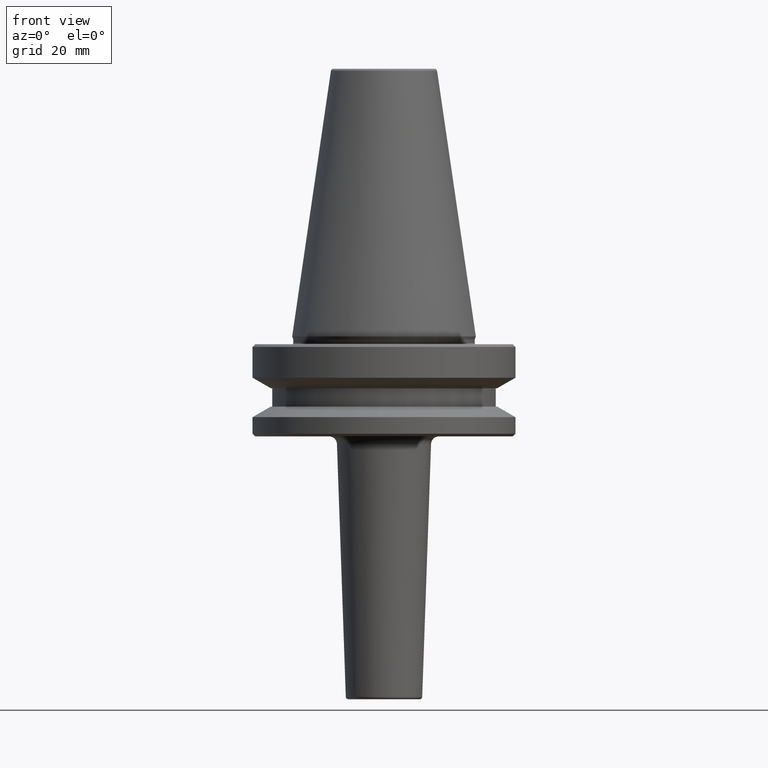
[diagram: clean part render]
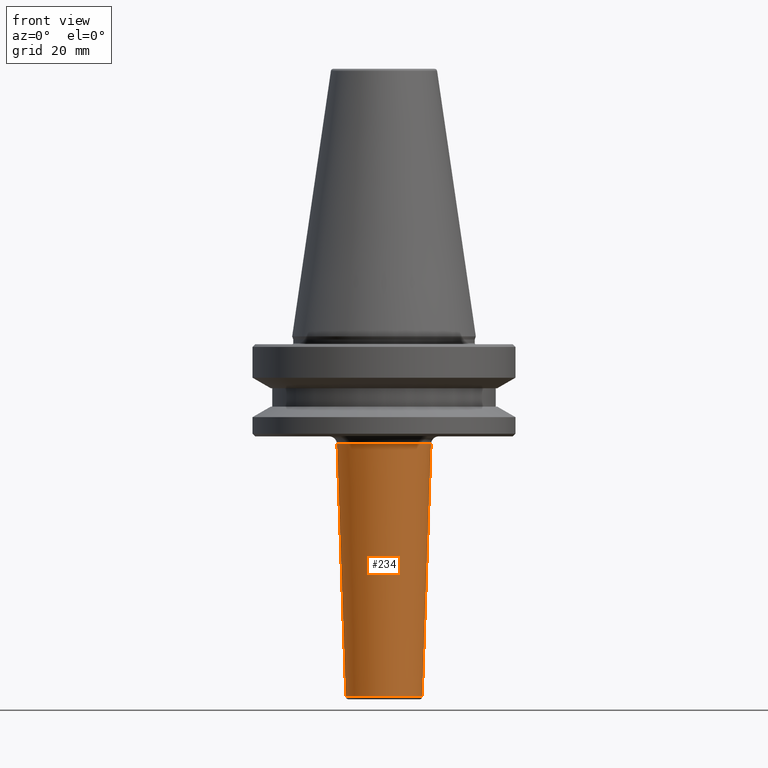
[diagram: same view with one face highlighted and labeled with its STEP entity id]
A machine part, front view. The second image highlights one B-rep face of the part: STEP entity #234.
In plain terms, the highlighted conical surface has half-angle 2.005 deg.
Its self-contained STEP definition (entity closure, byte-faithful):
#32 = VERTEX_POINT ( 'NONE', #838 ) ;
#78 = LINE ( 'NONE', #670, #550 ) ;
#88 = DIRECTION ( 'NONE',  ( 0.03497858217561827800, 0.0000000000000000000, 0.9993880621605322200 ) ) ;
#103 = ORIENTED_EDGE ( 'NONE', *, *, #742, .T. ) ;
#199 = DIRECTION ( 'NONE',  ( 1.000000000000000000, 0.0000000000000000000, 0.0000000000000000000 ) ) ;
#234 = ADVANCED_FACE ( 'NONE', ( #252 ), #574, .T. ) ;
#236 = CARTESIAN_POINT ( 'NONE',  ( 0.0000000000000000000, 0.0000000000000000000, -38.00000000000000700 ) ) ;
#244 = DIRECTION ( 'NONE',  ( 0.0000000000000000000, 0.0000000000000000000, -1.000000000000000000 ) ) ;
#252 = FACE_OUTER_BOUND ( 'NONE', #818, .T. ) ;
#288 = DIRECTION ( 'NONE',  ( 1.000000000000000000, 0.0000000000000000000, 0.0000000000000000000 ) ) ;
#301 = AXIS2_PLACEMENT_3D ( 'NONE', #493, #871, #288 ) ;
#340 = CARTESIAN_POINT ( 'NONE',  ( -14.53377574962391700, 1.779874195130235300E-015, -137.0349785821757100 ) ) ;
#350 = ORIENTED_EDGE ( 'NONE', *, *, #995, .T. ) ;
#366 = CIRCLE ( 'NONE', #619, 17.89867275112848300 ) ;
#387 = EDGE_CURVE ( 'NONE', #892, #688, #366, .T. ) ;
#423 = EDGE_CURVE ( 'NONE', #541, #688, #78, .T. ) ;
#478 = DIRECTION ( 'NONE',  ( -1.000000000000000000, 0.0000000000000000000, 0.0000000000000000000 ) ) ;
#493 = CARTESIAN_POINT ( 'NONE',  ( 0.0000000000000000000, 0.0000000000000000000, -137.0349785821757100 ) ) ;
#519 = ORIENTED_EDGE ( 'NONE', *, *, #387, .T. ) ;
#541 = VERTEX_POINT ( 'NONE', #340 ) ;
#550 = VECTOR ( 'NONE', #774, 999.9999999999998900 ) ;
#556 = ORIENTED_EDGE ( 'NONE', *, *, #423, .F. ) ;
#559 = CIRCLE ( 'NONE', #301, 14.53377574962392600 ) ;
#574 = CONICAL_SURFACE ( 'NONE', #751, 18.00000000000003900, 0.03498571882852540000 ) ;
#605 = CARTESIAN_POINT ( 'NONE',  ( -17.89867275112848000, 2.191955229365543900E-015, -40.89506425347322200 ) ) ;
#619 = AXIS2_PLACEMENT_3D ( 'NONE', #661, #244, #478 ) ;
#661 = CARTESIAN_POINT ( 'NONE',  ( 0.0000000000000000000, 0.0000000000000000000, -40.89506425347322200 ) ) ;
#670 = CARTESIAN_POINT ( 'NONE',  ( -18.00000000000003900, 2.204364238465240600E-015, -38.00000000000000700 ) ) ;
#688 = VERTEX_POINT ( 'NONE', #605 ) ;
#691 = DIRECTION ( 'NONE',  ( -0.0000000000000000000, -0.0000000000000000000, 1.000000000000000000 ) ) ;
#699 = CARTESIAN_POINT ( 'NONE',  ( 18.00000000000003900, 0.0000000000000000000, -38.00000000000000700 ) ) ;
#742 = EDGE_CURVE ( 'NONE', #541, #32, #559, .T. ) ;
#751 = AXIS2_PLACEMENT_3D ( 'NONE', #236, #691, #199 ) ;
#774 = DIRECTION ( 'NONE',  ( -0.03497858217561827800, 4.283640870008358500E-018, 0.9993880621605322200 ) ) ;
#784 = LINE ( 'NONE', #699, #792 ) ;
#792 = VECTOR ( 'NONE', #88, 999.9999999999998900 ) ;
#818 = EDGE_LOOP ( 'NONE', ( #556, #103, #350, #519 ) ) ;
#838 = CARTESIAN_POINT ( 'NONE',  ( 14.53377574962391700, 0.0000000000000000000, -137.0349785821757100 ) ) ;
#871 = DIRECTION ( 'NONE',  ( -0.0000000000000000000, -0.0000000000000000000, 1.000000000000000000 ) ) ;
#892 = VERTEX_POINT ( 'NONE', #957 ) ;
#957 = CARTESIAN_POINT ( 'NONE',  ( 17.89867275112848000, 0.0000000000000000000, -40.89506425347322200 ) ) ;
#995 = EDGE_CURVE ( 'NONE', #32, #892, #784, .T. ) ;